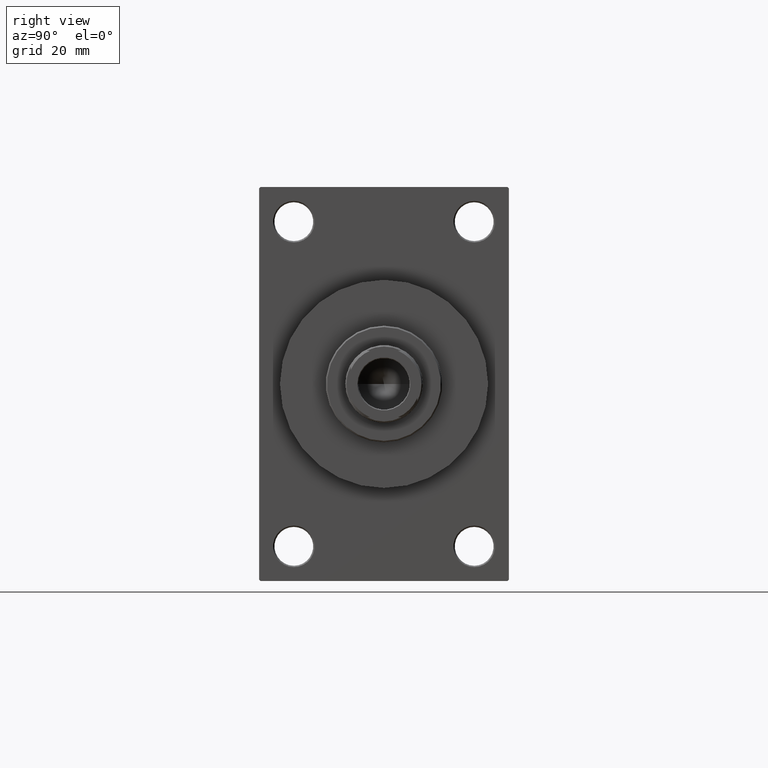
[diagram: clean part render]
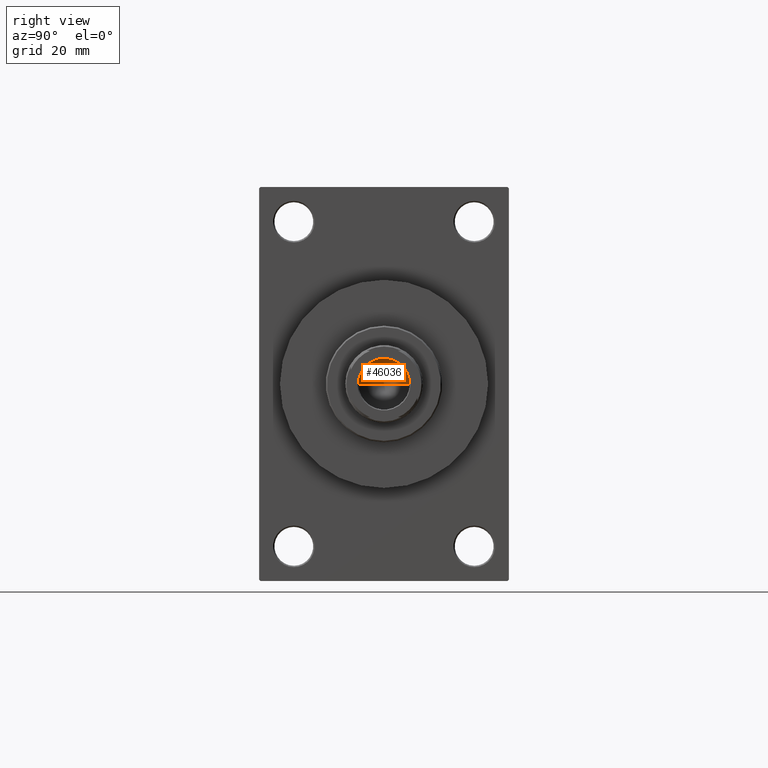
[diagram: same view with one face highlighted and labeled with its STEP entity id]
A machine part, right view. The second image highlights one B-rep face of the part: STEP entity #46036.
In plain terms, the highlighted conical surface has half-angle 59 deg.
Its self-contained STEP definition (entity closure, byte-faithful):
#857 = VECTOR ( 'NONE', #34109, 1000.000000000000000 ) ;
#932 = CARTESIAN_POINT ( 'NONE',  ( -9.249999999999992895, 1.132798289211300712E-15, 114.9999999999999858 ) ) ;
#1013 = ORIENTED_EDGE ( 'NONE', *, *, #33751, .F. ) ;
#1222 = CARTESIAN_POINT ( 'NONE',  ( -9.769621978240258809E-15, 0.000000000000000000, 109.4420392739950501 ) ) ;
#1652 = FACE_OUTER_BOUND ( 'NONE', #12684, .T. ) ;
#10951 = CARTESIAN_POINT ( 'NONE',  ( 9.249999999999992895, 0.000000000000000000, 114.9999999999999858 ) ) ;
#12684 = EDGE_LOOP ( 'NONE', ( #1013, #21071, #35127 ) ) ;
#16216 = EDGE_CURVE ( 'NONE', #27705, #43526, #21458, .T. ) ;
#16824 = DIRECTION ( 'NONE',  ( 1.000000000000000000, 0.000000000000000000, 0.000000000000000000 ) ) ;
#18581 = CARTESIAN_POINT ( 'NONE',  ( -9.249999999999992895, 1.132798289211300712E-15, 114.9999999999999858 ) ) ;
#19313 = VERTEX_POINT ( 'NONE', #1222 ) ;
#19806 = DIRECTION ( 'NONE',  ( -0.000000000000000000, -0.000000000000000000, 1.000000000000000000 ) ) ;
#21071 = ORIENTED_EDGE ( 'NONE', *, *, #40096, .T. ) ;
#21458 = CIRCLE ( 'NONE', #32116, 9.249999999999992895 ) ;
#22060 = CONICAL_SURFACE ( 'NONE', #44920, 9.249999999999992895, 1.029744258676653423 ) ;
#23389 = CARTESIAN_POINT ( 'NONE',  ( 0.000000000000000000, 0.000000000000000000, 114.9999999999999858 ) ) ;
#27705 = VERTEX_POINT ( 'NONE', #18581 ) ;
#32116 = AXIS2_PLACEMENT_3D ( 'NONE', #43300, #38767, #16824 ) ;
#32165 = LINE ( 'NONE', #33095, #38661 ) ;
#33095 = CARTESIAN_POINT ( 'NONE',  ( 9.249999999999992895, 0.000000000000000000, 114.9999999999999858 ) ) ;
#33751 = EDGE_CURVE ( 'NONE', #19313, #43526, #32165, .T. ) ;
#34109 = DIRECTION ( 'NONE',  ( -0.8571673007021117785, 1.049727191138617956E-16, 0.5150380749100550437 ) ) ;
#35127 = ORIENTED_EDGE ( 'NONE', *, *, #16216, .T. ) ;
#38661 = VECTOR ( 'NONE', #39547, 1000.000000000000000 ) ;
#38767 = DIRECTION ( 'NONE',  ( -0.000000000000000000, -0.000000000000000000, 1.000000000000000000 ) ) ;
#39547 = DIRECTION ( 'NONE',  ( 0.8571673007021117785, 0.000000000000000000, 0.5150380749100550437 ) ) ;
#40096 = EDGE_CURVE ( 'NONE', #19313, #27705, #44376, .T. ) ;
#41274 = DIRECTION ( 'NONE',  ( 1.000000000000000000, 0.000000000000000000, 0.000000000000000000 ) ) ;
#43300 = CARTESIAN_POINT ( 'NONE',  ( 0.000000000000000000, 0.000000000000000000, 114.9999999999999858 ) ) ;
#43526 = VERTEX_POINT ( 'NONE', #10951 ) ;
#44376 = LINE ( 'NONE', #932, #857 ) ;
#44920 = AXIS2_PLACEMENT_3D ( 'NONE', #23389, #19806, #41274 ) ;
#46036 = ADVANCED_FACE ( 'NONE', ( #1652 ), #22060, .F. ) ;